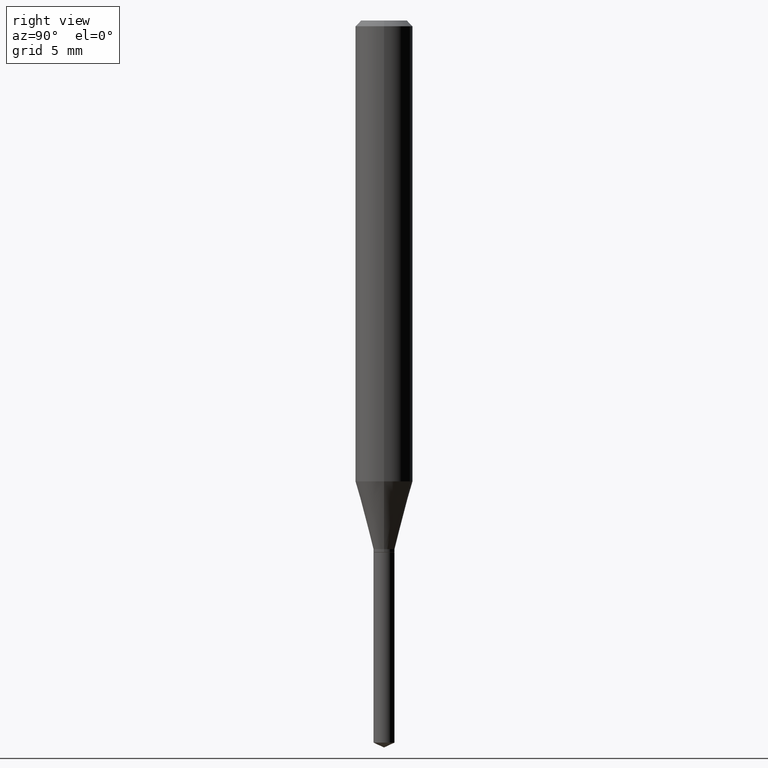
[diagram: clean part render]
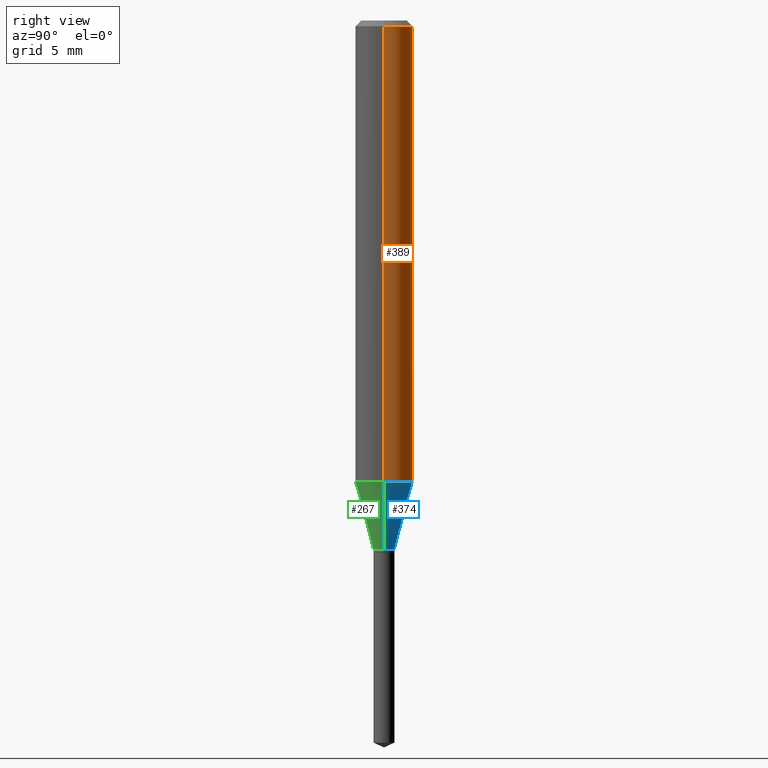
[diagram: same view with three faces highlighted in distinct colors, each labeled with its STEP entity id]
A machine part, right view with three faces highlighted in distinct colors.
Their STEP definitions:

[orange] entity #389 — the highlighted cylindrical surface (edge-blend (fillet) strip) has radius 1.4999 mm, axis along (-0, 0, 1).
#20 = ORIENTED_EDGE ( 'NONE', *, *, #27, .T. ) ;
#27 = EDGE_CURVE ( 'NONE', #411, #396, #64, .T. ) ;
#28 = DIRECTION ( 'NONE',  ( 1.000000000000000000, -6.982962677686266711E-15, 4.876176775795936353E-29 ) ) ;
#31 = VECTOR ( 'NONE', #249, 39.37007874015748143 ) ;
#63 = CARTESIAN_POINT ( 'NONE',  ( -0.05905000000000011628, -2.891819784135979347E-15, -0.9484212997969238002 ) ) ;
#64 = LINE ( 'NONE', #453, #138 ) ;
#77 = LINE ( 'NONE', #231, #31 ) ;
#92 = VERTEX_POINT ( 'NONE', #382 ) ;
#100 = VERTEX_POINT ( 'NONE', #426 ) ;
#106 = ORIENTED_EDGE ( 'NONE', *, *, #230, .T. ) ;
#110 = DIRECTION ( 'NONE',  ( -2.445468806185136877E-29, 3.491481338843145188E-15, 1.000000000000000000 ) ) ;
#117 = DIRECTION ( 'NONE',  ( -2.445468806185136597E-29, 3.491481338843145583E-15, 1.000000000000000000 ) ) ;
#138 = VECTOR ( 'NONE', #110, 39.37007874015748143 ) ;
#154 = CIRCLE ( 'NONE', #187, 0.05905000000000011628 ) ;
#166 = CARTESIAN_POINT ( 'NONE',  ( 2.888098660104664642E-31, -4.123439461173780879E-17, -0.01181000000000007565 ) ) ;
#187 = AXIS2_PLACEMENT_3D ( 'NONE', #314, #117, #275 ) ;
#228 = ORIENTED_EDGE ( 'NONE', *, *, #244, .F. ) ;
#230 = EDGE_CURVE ( 'NONE', #92, #411, #154, .T. ) ;
#231 = CARTESIAN_POINT ( 'NONE',  ( 0.05905000000000006771, -4.123439461173745257E-16, 2.879382386107503723E-30 ) ) ;
#240 = EDGE_LOOP ( 'NONE', ( #106, #20, #372, #228 ) ) ;
#244 = EDGE_CURVE ( 'NONE', #92, #100, #77, .T. ) ;
#249 = DIRECTION ( 'NONE',  ( -2.445468806185136877E-29, 3.491481338843145188E-15, 1.000000000000000000 ) ) ;
#275 = DIRECTION ( 'NONE',  ( 1.000000000000000000, -6.982962677686266711E-15, 0.000000000000000000 ) ) ;
#299 = EDGE_CURVE ( 'NONE', #100, #396, #393, .T. ) ;
#314 = CARTESIAN_POINT ( 'NONE',  ( 2.319334703774938841E-29, -3.311395269602319629E-15, -0.9484212997969238002 ) ) ;
#336 = AXIS2_PLACEMENT_3D ( 'NONE', #337, #373, #28 ) ;
#337 = CARTESIAN_POINT ( 'NONE',  ( 0.000000000000000000, 0.000000000000000000, 0.000000000000000000 ) ) ;
#372 = ORIENTED_EDGE ( 'NONE', *, *, #299, .F. ) ;
#373 = DIRECTION ( 'NONE',  ( -2.445468806185136597E-29, 3.491481338843145583E-15, 1.000000000000000000 ) ) ;
#378 = FACE_OUTER_BOUND ( 'NONE', #240, .T. ) ;
#382 = CARTESIAN_POINT ( 'NONE',  ( 0.05905000000000011628, -3.723739215719695338E-15, -0.9484212997969238002 ) ) ;
#389 = ADVANCED_FACE ( 'NONE', ( #378 ), #448, .T. ) ;
#393 = CIRCLE ( 'NONE', #446, 0.05905000000000000526 ) ;
#396 = VERTEX_POINT ( 'NONE', #410 ) ;
#406 = DIRECTION ( 'NONE',  ( -2.445468806185136597E-29, 3.491481338843145583E-15, 1.000000000000000000 ) ) ;
#410 = CARTESIAN_POINT ( 'NONE',  ( -0.05905000000000000526, -1.256739346640688594E-15, -0.01181000000000007565 ) ) ;
#411 = VERTEX_POINT ( 'NONE', #63 ) ;
#426 = CARTESIAN_POINT ( 'NONE',  ( 0.05905000000000000526, -4.535783407291119586E-16, -0.01181000000000007565 ) ) ;
#434 = DIRECTION ( 'NONE',  ( 1.000000000000000000, -6.982962677686268288E-15, 0.000000000000000000 ) ) ;
#446 = AXIS2_PLACEMENT_3D ( 'NONE', #166, #406, #434 ) ;
#448 = CYLINDRICAL_SURFACE ( 'NONE', #336, 0.05905000000000006771 ) ;
#453 = CARTESIAN_POINT ( 'NONE',  ( -0.05905000000000006771, 4.195754854663396409E-16, -2.904631170795525045E-30 ) ) ;

[blue] entity #374 — the highlighted conical surface has half-angle 15 deg.
#12 = VECTOR ( 'NONE', #354, 39.37007874015748854 ) ;
#29 = ORIENTED_EDGE ( 'NONE', *, *, #230, .F. ) ;
#43 = EDGE_CURVE ( 'NONE', #250, #411, #219, .T. ) ;
#63 = CARTESIAN_POINT ( 'NONE',  ( -0.05905000000000011628, -2.891819784135979347E-15, -0.9484212997969238002 ) ) ;
#65 = EDGE_CURVE ( 'NONE', #257, #250, #376, .T. ) ;
#68 = CARTESIAN_POINT ( 'NONE',  ( -0.02164999999999999564, -3.644899194369280335E-15, -1.088000000000000078 ) ) ;
#92 = VERTEX_POINT ( 'NONE', #382 ) ;
#97 = CARTESIAN_POINT ( 'NONE',  ( 2.660670061129428738E-29, -3.798731696661342438E-15, -1.088000000000000078 ) ) ;
#117 = DIRECTION ( 'NONE',  ( -2.445468806185136597E-29, 3.491481338843145583E-15, 1.000000000000000000 ) ) ;
#128 = CARTESIAN_POINT ( 'NONE',  ( -0.02164999999999999564, -3.655373638385810145E-15, -1.088000000000000078 ) ) ;
#136 = DIRECTION ( 'NONE',  ( 1.000000000000000000, -6.982962677686269866E-15, 0.000000000000000000 ) ) ;
#154 = CIRCLE ( 'NONE', #187, 0.05905000000000011628 ) ;
#164 = CARTESIAN_POINT ( 'NONE',  ( 0.02164999999999999564, -3.949912838633250169E-15, -1.088000000000000078 ) ) ;
#181 = DIRECTION ( 'NONE',  ( -0.2588190451025212391, 5.211531920934549464E-15, 0.9659258262890679791 ) ) ;
#187 = AXIS2_PLACEMENT_3D ( 'NONE', #314, #117, #275 ) ;
#202 = ORIENTED_EDGE ( 'NONE', *, *, #43, .T. ) ;
#211 = ORIENTED_EDGE ( 'NONE', *, *, #346, .F. ) ;
#217 = AXIS2_PLACEMENT_3D ( 'NONE', #370, #420, #381 ) ;
#219 = LINE ( 'NONE', #68, #438 ) ;
#230 = EDGE_CURVE ( 'NONE', #92, #411, #154, .T. ) ;
#241 = AXIS2_PLACEMENT_3D ( 'NONE', #97, #474, #136 ) ;
#250 = VERTEX_POINT ( 'NONE', #128 ) ;
#257 = VERTEX_POINT ( 'NONE', #164 ) ;
#275 = DIRECTION ( 'NONE',  ( 1.000000000000000000, -6.982962677686266711E-15, 0.000000000000000000 ) ) ;
#314 = CARTESIAN_POINT ( 'NONE',  ( 2.319334703774938841E-29, -3.311395269602319629E-15, -0.9484212997969238002 ) ) ;
#323 = FACE_OUTER_BOUND ( 'NONE', #342, .T. ) ;
#342 = EDGE_LOOP ( 'NONE', ( #440, #202, #29, #211 ) ) ;
#346 = EDGE_CURVE ( 'NONE', #257, #92, #398, .T. ) ;
#354 = DIRECTION ( 'NONE',  ( 0.2588190451025212391, 1.565188264969622362E-15, 0.9659258262890679791 ) ) ;
#360 = CARTESIAN_POINT ( 'NONE',  ( 0.02164999999999999564, -3.949912838633250169E-15, -1.088000000000000078 ) ) ;
#370 = CARTESIAN_POINT ( 'NONE',  ( 2.660670061129428738E-29, -3.798731696661342438E-15, -1.088000000000000078 ) ) ;
#374 = ADVANCED_FACE ( 'NONE', ( #323 ), #385, .T. ) ;
#376 = CIRCLE ( 'NONE', #217, 0.02164999999999999564 ) ;
#381 = DIRECTION ( 'NONE',  ( 1.000000000000000000, -6.982962677686269866E-15, 0.000000000000000000 ) ) ;
#382 = CARTESIAN_POINT ( 'NONE',  ( 0.05905000000000011628, -3.723739215719695338E-15, -0.9484212997969238002 ) ) ;
#385 = CONICAL_SURFACE ( 'NONE', #241, 0.02164999999999999564, 0.2617993877991499629 ) ;
#398 = LINE ( 'NONE', #360, #12 ) ;
#411 = VERTEX_POINT ( 'NONE', #63 ) ;
#420 = DIRECTION ( 'NONE',  ( -2.445468806185136597E-29, 3.491481338843145583E-15, 1.000000000000000000 ) ) ;
#438 = VECTOR ( 'NONE', #181, 39.37007874015748854 ) ;
#440 = ORIENTED_EDGE ( 'NONE', *, *, #65, .T. ) ;
#474 = DIRECTION ( 'NONE',  ( -2.445468806185136597E-29, 3.491481338843145583E-15, 1.000000000000000000 ) ) ;

[green] entity #267 — the highlighted conical surface has half-angle 15 deg.
#12 = VECTOR ( 'NONE', #354, 39.37007874015748854 ) ;
#14 = DIRECTION ( 'NONE',  ( 1.000000000000000000, -6.982962677686266711E-15, 0.000000000000000000 ) ) ;
#43 = EDGE_CURVE ( 'NONE', #250, #411, #219, .T. ) ;
#44 = CARTESIAN_POINT ( 'NONE',  ( 2.660670061129428738E-29, -3.798731696661342438E-15, -1.088000000000000078 ) ) ;
#53 = CONICAL_SURFACE ( 'NONE', #308, 0.02164999999999999564, 0.2617993877991499629 ) ;
#58 = DIRECTION ( 'NONE',  ( -2.445468806185136597E-29, 3.491481338843145583E-15, 1.000000000000000000 ) ) ;
#60 = DIRECTION ( 'NONE',  ( 1.000000000000000000, -6.982962677686269866E-15, 0.000000000000000000 ) ) ;
#63 = CARTESIAN_POINT ( 'NONE',  ( -0.05905000000000011628, -2.891819784135979347E-15, -0.9484212997969238002 ) ) ;
#68 = CARTESIAN_POINT ( 'NONE',  ( -0.02164999999999999564, -3.644899194369280335E-15, -1.088000000000000078 ) ) ;
#92 = VERTEX_POINT ( 'NONE', #382 ) ;
#104 = ORIENTED_EDGE ( 'NONE', *, *, #43, .F. ) ;
#111 = CIRCLE ( 'NONE', #141, 0.05905000000000011628 ) ;
#128 = CARTESIAN_POINT ( 'NONE',  ( -0.02164999999999999564, -3.655373638385810145E-15, -1.088000000000000078 ) ) ;
#131 = FACE_OUTER_BOUND ( 'NONE', #477, .T. ) ;
#141 = AXIS2_PLACEMENT_3D ( 'NONE', #441, #58, #14 ) ;
#164 = CARTESIAN_POINT ( 'NONE',  ( 0.02164999999999999564, -3.949912838633250169E-15, -1.088000000000000078 ) ) ;
#165 = EDGE_CURVE ( 'NONE', #250, #257, #318, .T. ) ;
#181 = DIRECTION ( 'NONE',  ( -0.2588190451025212391, 5.211531920934549464E-15, 0.9659258262890679791 ) ) ;
#219 = LINE ( 'NONE', #68, #438 ) ;
#238 = DIRECTION ( 'NONE',  ( 1.000000000000000000, -6.982962677686269866E-15, 0.000000000000000000 ) ) ;
#250 = VERTEX_POINT ( 'NONE', #128 ) ;
#256 = CARTESIAN_POINT ( 'NONE',  ( 2.660670061129428738E-29, -3.798731696661342438E-15, -1.088000000000000078 ) ) ;
#257 = VERTEX_POINT ( 'NONE', #164 ) ;
#267 = ADVANCED_FACE ( 'NONE', ( #131 ), #53, .T. ) ;
#288 = EDGE_CURVE ( 'NONE', #411, #92, #111, .T. ) ;
#308 = AXIS2_PLACEMENT_3D ( 'NONE', #256, #395, #60 ) ;
#318 = CIRCLE ( 'NONE', #403, 0.02164999999999999564 ) ;
#327 = ORIENTED_EDGE ( 'NONE', *, *, #165, .T. ) ;
#346 = EDGE_CURVE ( 'NONE', #257, #92, #398, .T. ) ;
#347 = DIRECTION ( 'NONE',  ( -2.445468806185136597E-29, 3.491481338843145583E-15, 1.000000000000000000 ) ) ;
#354 = DIRECTION ( 'NONE',  ( 0.2588190451025212391, 1.565188264969622362E-15, 0.9659258262890679791 ) ) ;
#360 = CARTESIAN_POINT ( 'NONE',  ( 0.02164999999999999564, -3.949912838633250169E-15, -1.088000000000000078 ) ) ;
#382 = CARTESIAN_POINT ( 'NONE',  ( 0.05905000000000011628, -3.723739215719695338E-15, -0.9484212997969238002 ) ) ;
#395 = DIRECTION ( 'NONE',  ( -2.445468806185136597E-29, 3.491481338843145583E-15, 1.000000000000000000 ) ) ;
#398 = LINE ( 'NONE', #360, #12 ) ;
#403 = AXIS2_PLACEMENT_3D ( 'NONE', #44, #347, #238 ) ;
#411 = VERTEX_POINT ( 'NONE', #63 ) ;
#415 = ORIENTED_EDGE ( 'NONE', *, *, #346, .T. ) ;
#438 = VECTOR ( 'NONE', #181, 39.37007874015748854 ) ;
#441 = CARTESIAN_POINT ( 'NONE',  ( 2.319334703774938841E-29, -3.311395269602319629E-15, -0.9484212997969238002 ) ) ;
#477 = EDGE_LOOP ( 'NONE', ( #104, #327, #415, #484 ) ) ;
#484 = ORIENTED_EDGE ( 'NONE', *, *, #288, .F. ) ;